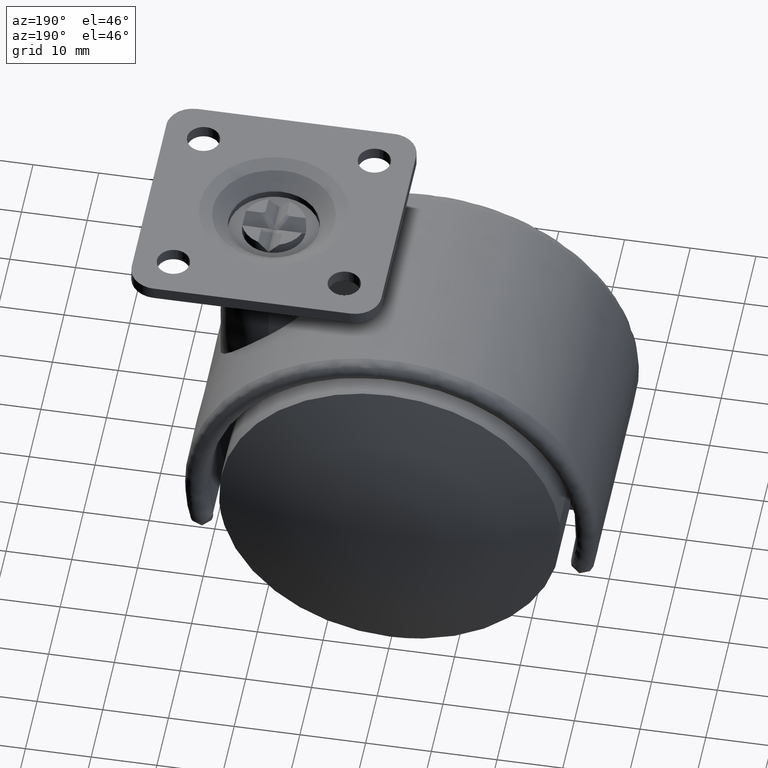
[diagram: clean part render]
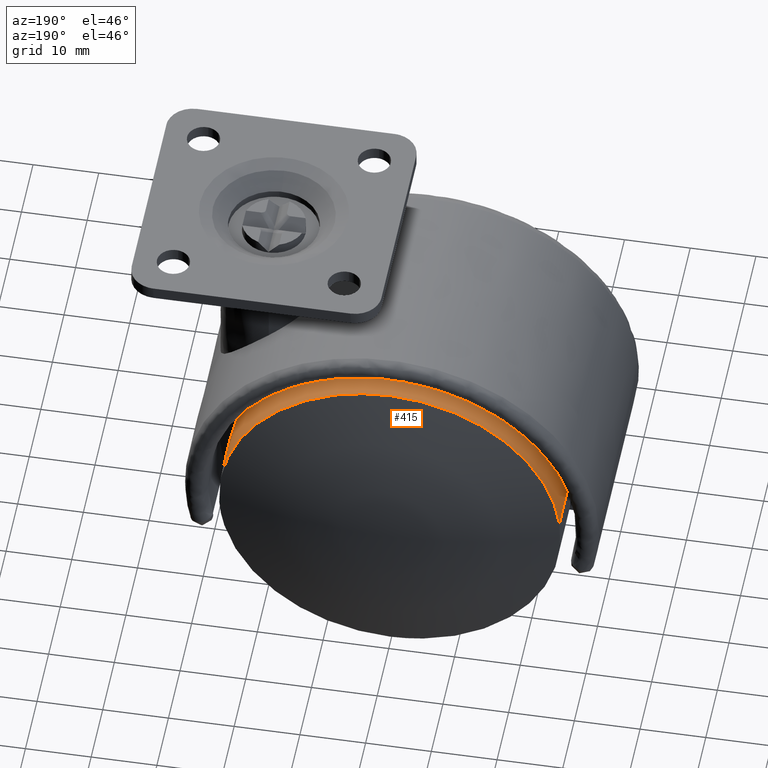
[diagram: same view with one face highlighted and labeled with its STEP entity id]
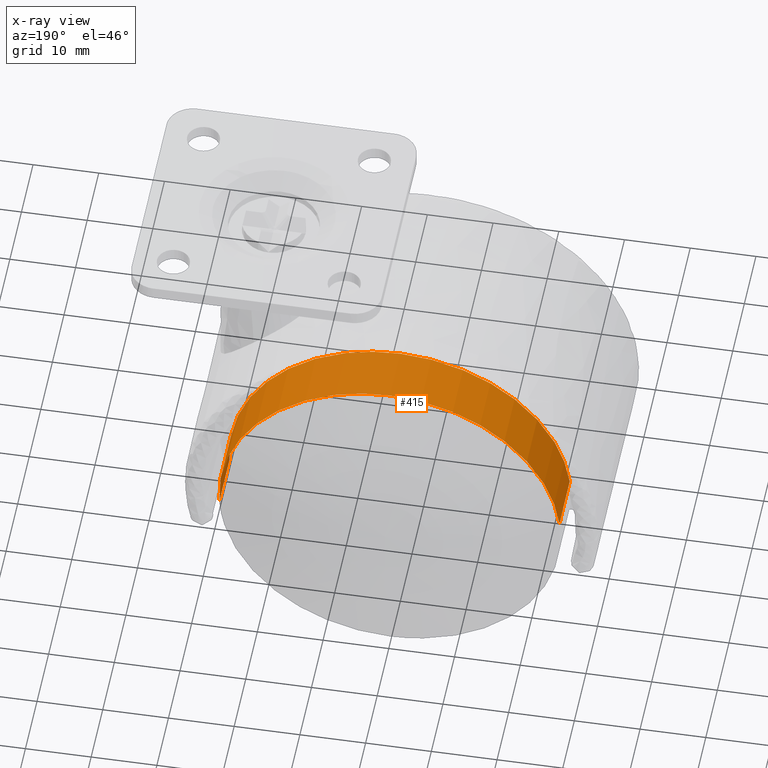
[diagram: x-ray of the same camera — body ghosted, the highlighted face saturated]
A machine part, auxiliary view. The second image highlights one B-rep face of the part: STEP entity #415.
The next image is the same camera in x-ray: the body ghosted, the highlighted face saturated — about 0% of this face is hidden behind the body in this view.
In plain terms, the highlighted face is a freeform B-spline surface patch.
Its self-contained STEP definition (entity closure, byte-faithful):
#252=CARTESIAN_POINT('',(25.818250716227940,-19.100000010721399,3.068864603291616));
#253=VERTEX_POINT('',#252);
#271=CARTESIAN_POINT('',(-25.951505815537288,-19.100000010721072,-1.587244752971166));
#272=VERTEX_POINT('',#271);
#286=CARTESIAN_POINT('',(-25.951505802817628,-10.250000000000000,-1.587244960940237));
#287=VERTEX_POINT('',#286);
#288=CARTESIAN_POINT('',(-25.951505815537288,-19.100000010721072,-1.587244752971166));
#289=CARTESIAN_POINT('',(-25.951505802817628,-10.250000000000000,-1.587244960940237));
#290=QUASI_UNIFORM_CURVE('',1,(#288,#289),.UNSPECIFIED.,.F.,.U.);
#291=EDGE_CURVE('',#272,#287,#290,.T.);
#308=CARTESIAN_POINT('',(25.818250679703731,-10.250000000000000,3.068864910571040));
#309=VERTEX_POINT('',#308);
#325=CARTESIAN_POINT('',(25.818250716227940,-19.100000010721399,3.068864603291616));
#326=CARTESIAN_POINT('',(25.818250679703731,-10.250000000000000,3.068864910571040));
#327=QUASI_UNIFORM_CURVE('',1,(#325,#326),.UNSPECIFIED.,.F.,.U.);
#328=EDGE_CURVE('',#253,#309,#327,.T.);
#333=CARTESIAN_POINT('',(-25.951504758968529,-19.321250010989289,-1.587262027906282));
#334=CARTESIAN_POINT('',(-27.538766786874810,-19.321250010989285,24.364242731062255));
#335=CARTESIAN_POINT('',(-1.587262027906282,-19.321250010989289,25.951504758968529));
#336=CARTESIAN_POINT('',(22.920130761827025,-19.321250010989292,27.450441115045709));
#337=CARTESIAN_POINT('',(25.818247685455319,-19.321250010989285,3.068890101075720));
#338=CARTESIAN_POINT('',(-25.951504758968529,-10.023218749725270,-1.587262027906282));
#339=CARTESIAN_POINT('',(-27.538766786874810,-10.023218749725267,24.364242731062255));
#340=CARTESIAN_POINT('',(-1.587262027906282,-10.023218749725270,25.951504758968529));
#341=CARTESIAN_POINT('',(22.920130761827025,-10.023218749725267,27.450441115045709));
#342=CARTESIAN_POINT('',(25.818247685455319,-10.023218749725268,3.068890101075720));
#350=(BOUNDED_SURFACE()B_SPLINE_SURFACE(2,1,((#333,#338),(#334,#339),(#335,#340),(#336,#341),(#337,#342)),.UNSPECIFIED.,.F.,.F.,.U.)B_SPLINE_SURFACE_WITH_KNOTS((3,2,3),(2,2),(0.0,43.078210486801879,84.433292554131683),(0.0,9.298031261264020),.UNSPECIFIED.)GEOMETRIC_REPRESENTATION_ITEM()RATIONAL_B_SPLINE_SURFACE(((1.0,1.0),(0.707106781186548,0.707106781186548),(1.0,1.0),(0.718822509939086,0.718822509939086),(0.977505800795127,0.977505800795127)))REPRESENTATION_ITEM('')SURFACE());
#351=CARTESIAN_POINT('',(0.0,-19.100000010721249,26.0));
#352=VERTEX_POINT('',#351);
#353=CARTESIAN_POINT('',(0.0,-19.100000010721249,26.0));
#354=CARTESIAN_POINT('',(23.092560641195718,-19.100000010721246,26.0));
#355=CARTESIAN_POINT('',(25.818250716227936,-19.100000010721409,3.068864603291616));
#363=(BOUNDED_CURVE()B_SPLINE_CURVE(2,(#353,#354,#355),.UNSPECIFIED.,.F.,.U.)B_SPLINE_CURVE_WITH_KNOTS((3,3),(0.0,0.229562640421186),.UNSPECIFIED.)CURVE()GEOMETRIC_REPRESENTATION_ITEM()RATIONAL_B_SPLINE_CURVE((1.0,0.731050637310895,0.956027081329839))REPRESENTATION_ITEM(''));
#364=EDGE_CURVE('',#352,#253,#363,.T.);
#365=ORIENTED_EDGE('',*,*,#364,.T.);
#366=ORIENTED_EDGE('',*,*,#328,.T.);
#367=CARTESIAN_POINT('',(0.0,-10.250000000000000,26.0));
#368=VERTEX_POINT('',#367);
#369=CARTESIAN_POINT('',(0.0,-10.250000000000000,26.0));
#370=CARTESIAN_POINT('',(23.092560364421743,-10.250000000000000,26.0));
#371=CARTESIAN_POINT('',(25.818250679703727,-10.250000000000000,3.068864910571040));
#379=(BOUNDED_CURVE()B_SPLINE_CURVE(2,(#369,#370,#371),.UNSPECIFIED.,.F.,.U.)B_SPLINE_CURVE_WITH_KNOTS((3,3),(0.0,0.229562638409770),.UNSPECIFIED.)CURVE()GEOMETRIC_REPRESENTATION_ITEM()RATIONAL_B_SPLINE_CURVE((1.0,0.731050639667415,0.956027077387376))REPRESENTATION_ITEM(''));
#380=EDGE_CURVE('',#368,#309,#379,.T.);
#381=ORIENTED_EDGE('',*,*,#380,.F.);
#382=CARTESIAN_POINT('',(-25.951505802817632,-10.249999999999998,-1.587244960940237));
#383=CARTESIAN_POINT('',(-26.000000000000004,-10.250000000000004,-0.794363288353669));
#384=CARTESIAN_POINT('',(-26.0,-10.250000000000000,0.0));
#385=CARTESIAN_POINT('',(-26.000000000000007,-10.250000000000000,26.000000000000007));
#386=CARTESIAN_POINT('',(0.0,-10.250000000000000,26.0));
#394=(BOUNDED_CURVE()B_SPLINE_CURVE(2,(#382,#383,#384,#385,#386),.UNSPECIFIED.,.F.,.U.)B_SPLINE_CURVE_WITH_KNOTS((3,2,3),(0.739333075717101,0.750000000000000,1.0),.UNSPECIFIED.)CURVE()GEOMETRIC_REPRESENTATION_ITEM()RATIONAL_B_SPLINE_CURVE((0.976072284872133,0.987502920847769,1.0,0.707106781186547,1.0))REPRESENTATION_ITEM(''));
#395=EDGE_CURVE('',#287,#368,#394,.T.);
#396=ORIENTED_EDGE('',*,*,#395,.F.);
#397=ORIENTED_EDGE('',*,*,#291,.F.);
#398=CARTESIAN_POINT('',(-25.951505815537292,-19.100000010721072,-1.587244752971166));
#399=CARTESIAN_POINT('',(-25.999999999999996,-19.100000010721246,-0.794363184077576));
#400=CARTESIAN_POINT('',(-26.0,-19.100000010721249,0.0));
#401=CARTESIAN_POINT('',(-26.000000000000007,-19.100000010721242,26.000000000000007));
#402=CARTESIAN_POINT('',(0.0,-19.100000010721249,26.0));
#410=(BOUNDED_CURVE()B_SPLINE_CURVE(2,(#398,#399,#400,#401,#402),.UNSPECIFIED.,.F.,.U.)B_SPLINE_CURVE_WITH_KNOTS((3,2,3),(0.739333077099850,0.750000000000000,1.0),.UNSPECIFIED.)CURVE()GEOMETRIC_REPRESENTATION_ITEM()RATIONAL_B_SPLINE_CURVE((0.976072287835629,0.987502922467760,1.0,0.707106781186547,1.0))REPRESENTATION_ITEM(''));
#411=EDGE_CURVE('',#272,#352,#410,.T.);
#412=ORIENTED_EDGE('',*,*,#411,.T.);
#413=EDGE_LOOP('',(#365,#366,#381,#396,#397,#412));
#414=FACE_OUTER_BOUND('',#413,.T.);
#415=ADVANCED_FACE('',(#414),#350,.T.);